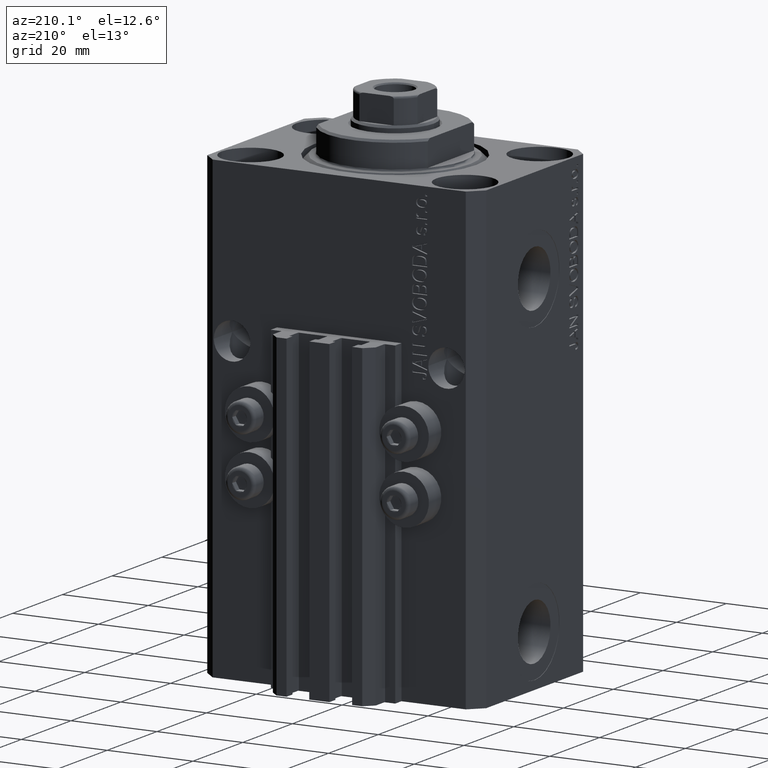
[diagram: clean part render]
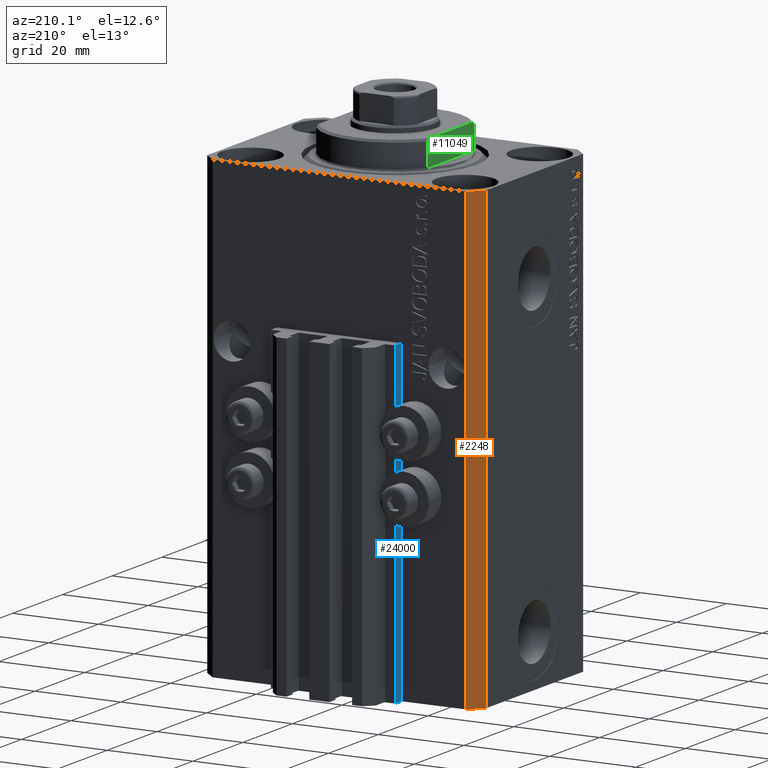
[diagram: same view with three faces highlighted in distinct colors, each labeled with its STEP entity id]
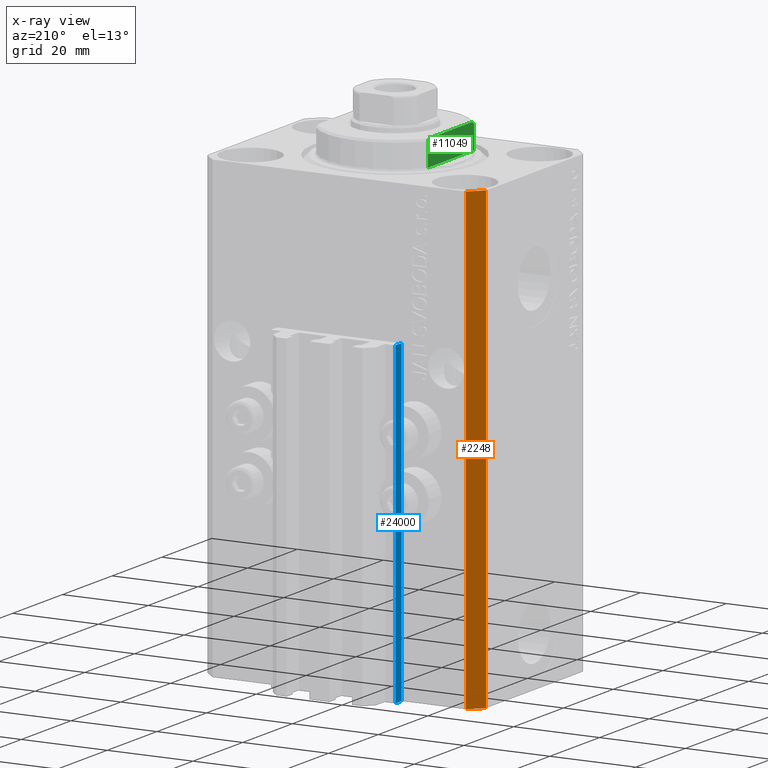
[diagram: x-ray of the same camera — body ghosted, the three highlighted faces saturated]
A machine part, auxiliary view with three faces highlighted in distinct colors.
The next image is the same camera in x-ray (body ghosted, the three faces saturated) — at least one of them is partly hidden behind the body in this view.
Their STEP definitions:

[orange] entity #2248 — the highlighted planar face has unit normal (-0.7071, 0.7071, 0).
#984 = CARTESIAN_POINT ( 'NONE',  ( -29.49999999999650413, 22.49999999999949907, -107.0000000000000000 ) ) ;
#2248 = ADVANCED_FACE ( 'NONE', ( #2979 ), #10145, .T. ) ;
#2289 = DIRECTION ( 'NONE',  ( -0.7071067811865474617, -0.7071067811865474617, 0.000000000000000000 ) ) ;
#2979 = FACE_OUTER_BOUND ( 'NONE', #22132, .T. ) ;
#3051 = VERTEX_POINT ( 'NONE', #28506 ) ;
#4433 = DIRECTION ( 'NONE',  ( -0.7071067811865474617, -0.7071067811865474617, 0.000000000000000000 ) ) ;
#4665 = CARTESIAN_POINT ( 'NONE',  ( -29.49999999999650413, 22.49999999999949907, -107.0000000000000000 ) ) ;
#5566 = VECTOR ( 'NONE', #15400, 1000.000000000000000 ) ;
#6393 = CARTESIAN_POINT ( 'NONE',  ( -29.49999999999650413, 22.49999999999949907, -107.0000000000000000 ) ) ;
#7787 = CARTESIAN_POINT ( 'NONE',  ( -29.49999999999650413, 22.49999999999949907, 0.000000000000000000 ) ) ;
#8315 = VERTEX_POINT ( 'NONE', #36940 ) ;
#9255 = VECTOR ( 'NONE', #4433, 1000.000000000000114 ) ;
#10145 = PLANE ( 'NONE',  #43524 ) ;
#11298 = VERTEX_POINT ( 'NONE', #41603 ) ;
#11815 = ORIENTED_EDGE ( 'NONE', *, *, #21761, .T. ) ;
#14821 = VECTOR ( 'NONE', #20944, 1000.000000000000114 ) ;
#15400 = DIRECTION ( 'NONE',  ( 0.000000000000000000, 0.000000000000000000, 1.000000000000000000 ) ) ;
#16030 = LINE ( 'NONE', #984, #32909 ) ;
#16105 = ORIENTED_EDGE ( 'NONE', *, *, #16524, .F. ) ;
#16524 = EDGE_CURVE ( 'NONE', #8315, #11298, #39996, .T. ) ;
#19286 = EDGE_CURVE ( 'NONE', #36747, #8315, #16030, .T. ) ;
#20944 = DIRECTION ( 'NONE',  ( -0.7071067811865474617, -0.7071067811865474617, 0.000000000000000000 ) ) ;
#21761 = EDGE_CURVE ( 'NONE', #3051, #11298, #22555, .T. ) ;
#22132 = EDGE_LOOP ( 'NONE', ( #16105, #32036, #42030, #11815 ) ) ;
#22555 = LINE ( 'NONE', #26592, #5566 ) ;
#24904 = EDGE_CURVE ( 'NONE', #36747, #3051, #28550, .T. ) ;
#26592 = CARTESIAN_POINT ( 'NONE',  ( -32.49999999999650413, 19.49999999999949907, -107.0000000000000000 ) ) ;
#28506 = CARTESIAN_POINT ( 'NONE',  ( -32.49999999999650413, 19.49999999999949907, -107.0000000000000000 ) ) ;
#28550 = LINE ( 'NONE', #6393, #14821 ) ;
#31849 = CARTESIAN_POINT ( 'NONE',  ( -29.49999999999650413, 22.49999999999949907, -107.0000000000000000 ) ) ;
#32036 = ORIENTED_EDGE ( 'NONE', *, *, #19286, .F. ) ;
#32909 = VECTOR ( 'NONE', #40833, 1000.000000000000000 ) ;
#36747 = VERTEX_POINT ( 'NONE', #4665 ) ;
#36940 = CARTESIAN_POINT ( 'NONE',  ( -29.49999999999650413, 22.49999999999949907, 0.000000000000000000 ) ) ;
#38795 = DIRECTION ( 'NONE',  ( -0.7071067811865475727, 0.7071067811865475727, 0.000000000000000000 ) ) ;
#39996 = LINE ( 'NONE', #7787, #9255 ) ;
#40833 = DIRECTION ( 'NONE',  ( 0.000000000000000000, 0.000000000000000000, 1.000000000000000000 ) ) ;
#41603 = CARTESIAN_POINT ( 'NONE',  ( -32.49999999999650413, 19.49999999999949907, 0.000000000000000000 ) ) ;
#42030 = ORIENTED_EDGE ( 'NONE', *, *, #24904, .T. ) ;
#43524 = AXIS2_PLACEMENT_3D ( 'NONE', #31849, #38795, #2289 ) ;

[blue] entity #24000 — the highlighted planar face has unit normal (-1, 0, 0).
#307 = CARTESIAN_POINT ( 'NONE',  ( -14.50000000000000000, 24.99999999999949196, -33.00000000000000000 ) ) ;
#2621 = EDGE_CURVE ( 'NONE', #45769, #13006, #28914, .T. ) ;
#3150 = LINE ( 'NONE', #6970, #10670 ) ;
#5146 = VECTOR ( 'NONE', #26290, 1000.000000000000000 ) ;
#5491 = CARTESIAN_POINT ( 'NONE',  ( -14.50000000000000000, 24.99999999999949196, -107.0000000000000000 ) ) ;
#6970 = CARTESIAN_POINT ( 'NONE',  ( -14.50000000000000000, 24.99999999999949196, -107.0000000000000000 ) ) ;
#7462 = DIRECTION ( 'NONE',  ( 0.000000000000000000, -1.000000000000000000, 0.000000000000000000 ) ) ;
#8599 = PLANE ( 'NONE',  #13996 ) ;
#9069 = FACE_OUTER_BOUND ( 'NONE', #27159, .T. ) ;
#9309 = DIRECTION ( 'NONE',  ( 0.000000000000000000, 0.000000000000000000, 1.000000000000000000 ) ) ;
#9563 = CARTESIAN_POINT ( 'NONE',  ( -14.50000000000000000, 22.49999999999949907, -33.00000000000000000 ) ) ;
#10585 = EDGE_CURVE ( 'NONE', #45769, #15071, #3150, .T. ) ;
#10670 = VECTOR ( 'NONE', #32485, 1000.000000000000000 ) ;
#11858 = CARTESIAN_POINT ( 'NONE',  ( -14.50000000000000000, 22.49999999999949907, -107.0000000000000000 ) ) ;
#12652 = ORIENTED_EDGE ( 'NONE', *, *, #10585, .F. ) ;
#13006 = VERTEX_POINT ( 'NONE', #11858 ) ;
#13996 = AXIS2_PLACEMENT_3D ( 'NONE', #5491, #34607, #9309 ) ;
#14612 = CARTESIAN_POINT ( 'NONE',  ( -14.50000000000000000, 24.99999999999949196, -107.0000000000000000 ) ) ;
#15071 = VERTEX_POINT ( 'NONE', #25366 ) ;
#17405 = VECTOR ( 'NONE', #26161, 1000.000000000000000 ) ;
#24000 = ADVANCED_FACE ( 'NONE', ( #9069 ), #8599, .T. ) ;
#25366 = CARTESIAN_POINT ( 'NONE',  ( -14.50000000000000000, 24.99999999999949196, -33.00000000000000000 ) ) ;
#26161 = DIRECTION ( 'NONE',  ( 0.000000000000000000, 0.000000000000000000, 1.000000000000000000 ) ) ;
#26290 = DIRECTION ( 'NONE',  ( 0.000000000000000000, -1.000000000000000000, 0.000000000000000000 ) ) ;
#27159 = EDGE_LOOP ( 'NONE', ( #41728, #12652, #43050, #42577 ) ) ;
#27180 = CARTESIAN_POINT ( 'NONE',  ( -14.50000000000000000, 24.99999999999949196, -107.0000000000000000 ) ) ;
#28914 = LINE ( 'NONE', #14612, #31364 ) ;
#30689 = CARTESIAN_POINT ( 'NONE',  ( -14.50000000000000000, 22.49999999999949907, -107.0000000000000000 ) ) ;
#31364 = VECTOR ( 'NONE', #7462, 1000.000000000000000 ) ;
#32485 = DIRECTION ( 'NONE',  ( 0.000000000000000000, 0.000000000000000000, 1.000000000000000000 ) ) ;
#33709 = LINE ( 'NONE', #307, #5146 ) ;
#33813 = LINE ( 'NONE', #30689, #17405 ) ;
#34607 = DIRECTION ( 'NONE',  ( -1.000000000000000000, 0.000000000000000000, 0.000000000000000000 ) ) ;
#36987 = EDGE_CURVE ( 'NONE', #15071, #39856, #33709, .T. ) ;
#39856 = VERTEX_POINT ( 'NONE', #9563 ) ;
#41728 = ORIENTED_EDGE ( 'NONE', *, *, #36987, .F. ) ;
#42577 = ORIENTED_EDGE ( 'NONE', *, *, #43566, .T. ) ;
#43050 = ORIENTED_EDGE ( 'NONE', *, *, #2621, .T. ) ;
#43566 = EDGE_CURVE ( 'NONE', #13006, #39856, #33813, .T. ) ;
#45769 = VERTEX_POINT ( 'NONE', #27180 ) ;

[green] entity #11049 — the highlighted planar face has unit normal (-1, 0, 0).
#1444 = LINE ( 'NONE', #16697, #46287 ) ;
#3533 = DIRECTION ( 'NONE',  ( 0.000000000000000000, 0.000000000000000000, -1.000000000000000000 ) ) ;
#4387 = ORIENTED_EDGE ( 'NONE', *, *, #19711, .F. ) ;
#5358 = CARTESIAN_POINT ( 'NONE',  ( 13.00000000000000000, -9.327379053088815652, -0.4999999999999995559 ) ) ;
#6177 = LINE ( 'NONE', #20729, #45307 ) ;
#7174 = DIRECTION ( 'NONE',  ( 0.000000000000000000, -1.000000000000000000, -0.000000000000000000 ) ) ;
#7306 = EDGE_LOOP ( 'NONE', ( #28664, #16310, #37469, #43604, #16541, #4387 ) ) ;
#8566 = DIRECTION ( 'NONE',  ( 1.000000000000000000, 0.000000000000000000, -0.000000000000000000 ) ) ;
#8804 = PLANE ( 'NONE',  #14521 ) ;
#10267 = CARTESIAN_POINT ( 'NONE',  ( 13.00000000000000000, -9.327379053088815652, -6.000000000000030198 ) ) ;
#11049 = ADVANCED_FACE ( 'NONE', ( #45062 ), #8804, .T. ) ;
#11275 = B_SPLINE_CURVE_WITH_KNOTS ( 'NONE', 3,
 ( #29920, #11340, #18710, #32561 ),
 .UNSPECIFIED., .F., .F.,
 ( 4, 4 ),
 ( 0.03031084603841415620, 0.03132841702658697297 ),
 .UNSPECIFIED. ) ;
#11340 = CARTESIAN_POINT ( 'NONE',  ( 13.00000000000000000, 9.034035639617135516, -6.171007825636153576 ) ) ;
#11363 = EDGE_CURVE ( 'NONE', #32252, #44690, #29572, .T. ) ;
#11906 = DIRECTION ( 'NONE',  ( -0.000000000000000000, 0.000000000000000000, -1.000000000000000000 ) ) ;
#12940 = VECTOR ( 'NONE', #3533, 1000.000000000000000 ) ;
#14521 = AXIS2_PLACEMENT_3D ( 'NONE', #33854, #8566, #11906 ) ;
#14565 = CARTESIAN_POINT ( 'NONE',  ( 13.00000000000000000, -43.08131845707602992, -0.4999999999999995559 ) ) ;
#14657 = CARTESIAN_POINT ( 'NONE',  ( 13.00000000000000000, 9.327379053088815652, -0.4999999999999995559 ) ) ;
#16255 = CARTESIAN_POINT ( 'NONE',  ( 13.00000000000000000, -9.034292940839595332, -6.170857829009071871 ) ) ;
#16310 = ORIENTED_EDGE ( 'NONE', *, *, #45605, .T. ) ;
#16541 = ORIENTED_EDGE ( 'NONE', *, *, #25985, .F. ) ;
#16697 = CARTESIAN_POINT ( 'NONE',  ( 13.00000000000000000, 9.327379053088813876, -6.500000000000000000 ) ) ;
#18710 = CARTESIAN_POINT ( 'NONE',  ( 13.00000000000000000, 8.738667591047022398, -6.337881022290552835 ) ) ;
#19711 = EDGE_CURVE ( 'NONE', #47209, #29813, #11275, .T. ) ;
#20729 = CARTESIAN_POINT ( 'NONE',  ( 13.00000000000000000, -43.08131845707602992, -6.500000000000000000 ) ) ;
#24727 = CARTESIAN_POINT ( 'NONE',  ( 13.00000000000000000, -8.440971508067137918, -6.500000000000000000 ) ) ;
#25407 = VERTEX_POINT ( 'NONE', #14657 ) ;
#25985 = EDGE_CURVE ( 'NONE', #29813, #32252, #6177, .T. ) ;
#26492 = CARTESIAN_POINT ( 'NONE',  ( 13.00000000000000000, -8.440971508067137918, -6.500000000000000000 ) ) ;
#26722 = DIRECTION ( 'NONE',  ( -0.000000000000000000, -0.000000000000000000, 1.000000000000000000 ) ) ;
#28664 = ORIENTED_EDGE ( 'NONE', *, *, #38362, .T. ) ;
#28808 = LINE ( 'NONE', #43375, #12940 ) ;
#29572 = B_SPLINE_CURVE_WITH_KNOTS ( 'NONE', 3,
 ( #26492, #41060, #16255, #30790 ),
 .UNSPECIFIED., .F., .F.,
 ( 4, 4 ),
 ( 0.04915043732154494860, 0.05017913261572036487 ),
 .UNSPECIFIED. ) ;
#29813 = VERTEX_POINT ( 'NONE', #44023 ) ;
#29920 = CARTESIAN_POINT ( 'NONE',  ( 13.00000000000000000, 9.327379053088916905, -6.000000000000021316 ) ) ;
#30790 = CARTESIAN_POINT ( 'NONE',  ( 13.00000000000000000, -9.327379053088815652, -6.000000000000030198 ) ) ;
#32252 = VERTEX_POINT ( 'NONE', #24727 ) ;
#32561 = CARTESIAN_POINT ( 'NONE',  ( 13.00000000000000000, 8.440971508067137918, -6.500000000000000000 ) ) ;
#33490 = VECTOR ( 'NONE', #7174, 1000.000000000000000 ) ;
#33854 = CARTESIAN_POINT ( 'NONE',  ( 13.00000000000000000, -43.08131845707602992, -0.4999999999999995559 ) ) ;
#37469 = ORIENTED_EDGE ( 'NONE', *, *, #45918, .T. ) ;
#38090 = CARTESIAN_POINT ( 'NONE',  ( 13.00000000000000000, 9.327379053088916905, -6.000000000000021316 ) ) ;
#38362 = EDGE_CURVE ( 'NONE', #47209, #25407, #1444, .T. ) ;
#39553 = DIRECTION ( 'NONE',  ( 0.000000000000000000, -1.000000000000000000, -0.000000000000000000 ) ) ;
#39858 = LINE ( 'NONE', #14565, #33490 ) ;
#41060 = CARTESIAN_POINT ( 'NONE',  ( 13.00000000000000000, -8.738941625005656633, -6.337731789204291033 ) ) ;
#43375 = CARTESIAN_POINT ( 'NONE',  ( 13.00000000000000000, -9.327379053088813876, -6.500000000000000000 ) ) ;
#43604 = ORIENTED_EDGE ( 'NONE', *, *, #11363, .F. ) ;
#43974 = VERTEX_POINT ( 'NONE', #5358 ) ;
#44023 = CARTESIAN_POINT ( 'NONE',  ( 13.00000000000000000, 8.440971508067137918, -6.500000000000000000 ) ) ;
#44690 = VERTEX_POINT ( 'NONE', #10267 ) ;
#45062 = FACE_OUTER_BOUND ( 'NONE', #7306, .T. ) ;
#45307 = VECTOR ( 'NONE', #39553, 1000.000000000000000 ) ;
#45605 = EDGE_CURVE ( 'NONE', #25407, #43974, #39858, .T. ) ;
#45918 = EDGE_CURVE ( 'NONE', #43974, #44690, #28808, .T. ) ;
#46287 = VECTOR ( 'NONE', #26722, 1000.000000000000000 ) ;
#47209 = VERTEX_POINT ( 'NONE', #38090 ) ;